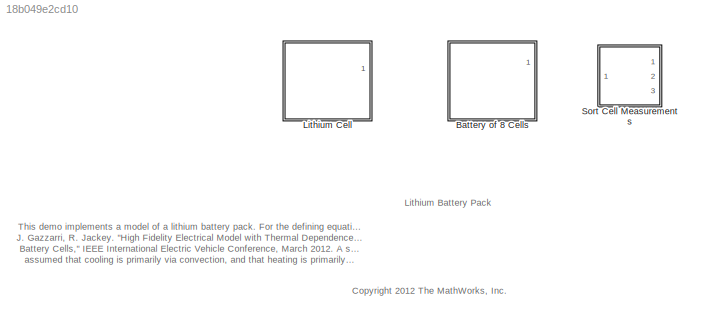
MODEL slx_18b049e2cd10
KIND library
CONFIG AbsTol = auto
CONFIG EnableMultiTasking = on
CONFIG FixedStep = auto
CONFIG MaxStep = auto
CONFIG MinStep = auto
CONFIG RelTol = 1e-3
CONFIG SampleTimeConstraint = Unconstrained
CONFIG Solver = ode45
CONFIG SolverName = ode45
CONFIG StartTime = 0.0
CONFIG StopTime = 10.0
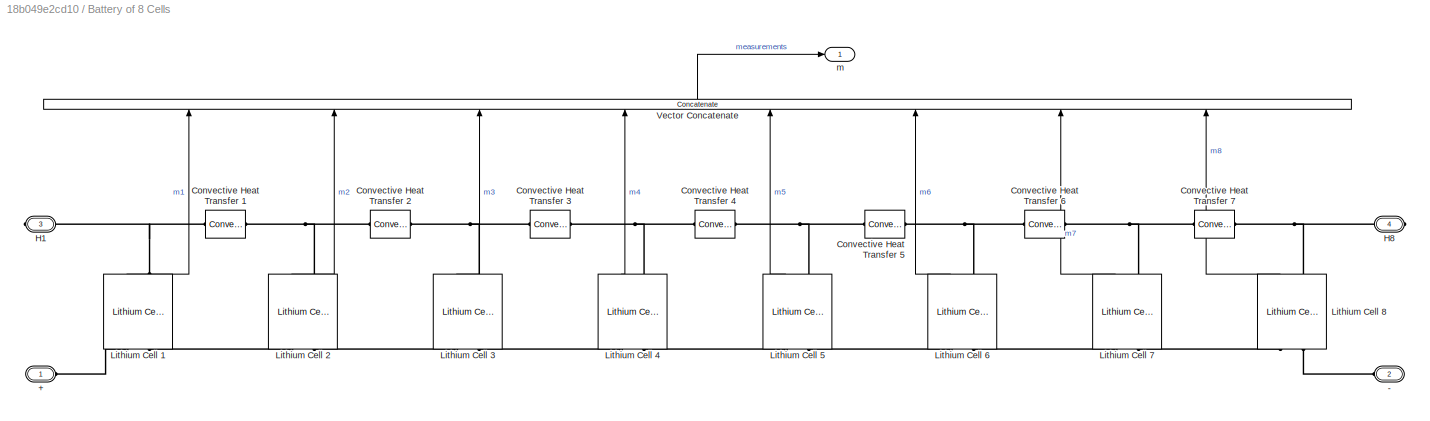
BLOCK [SubSystem] Battery of 8 Cells
  AttributesFormatString = %<ThisStackParams>
  Ports = [0, 1, 0, 0, 0, 2, 2]
  RequestExecContextInheritance = off
  Variant = off
BLOCK [PMIOPort] Battery of 8 Cells/+
  Port = 1
  Side = Left
BLOCK [PMIOPort] Battery of 8 Cells/-
  Port = 2
  Side = Left
BLOCK [Reference] Battery of 8 Cells/Convective Heat Transfer 1  REF=fl_lib/Thermal/Thermal Elements/Convective Heat
Transfer
  Ports = [0, 0, 0, 0, 0, 1, 1]
  SourceBlock = fl_lib/Thermal/Thermal Elements/Convective Heat\nTransfer
  SourceProductBaseCode = SS
  SourceProductName = Simscape
  SourceType = Convective Heat\nTransfer
BLOCK [Reference] Battery of 8 Cells/Convective Heat Transfer 2  REF=fl_lib/Thermal/Thermal Elements/Convective Heat
Transfer
  Ports = [0, 0, 0, 0, 0, 1, 1]
  SourceBlock = fl_lib/Thermal/Thermal Elements/Convective Heat\nTransfer
  SourceProductBaseCode = SS
  SourceProductName = Simscape
  SourceType = Convective Heat\nTransfer
BLOCK [Reference] Battery of 8 Cells/Convective Heat Transfer 3  REF=fl_lib/Thermal/Thermal Elements/Convective Heat
Transfer
  Ports = [0, 0, 0, 0, 0, 1, 1]
  SourceBlock = fl_lib/Thermal/Thermal Elements/Convective Heat\nTransfer
  SourceProductBaseCode = SS
  SourceProductName = Simscape
  SourceType = Convective Heat\nTransfer
BLOCK [Reference] Battery of 8 Cells/Convective Heat Transfer 4  REF=fl_lib/Thermal/Thermal Elements/Convective Heat
Transfer
  Ports = [0, 0, 0, 0, 0, 1, 1]
  SourceBlock = fl_lib/Thermal/Thermal Elements/Convective Heat\nTransfer
  SourceProductBaseCode = SS
  SourceProductName = Simscape
  SourceType = Convective Heat\nTransfer
BLOCK [Reference] Battery of 8 Cells/Convective Heat Transfer 5  REF=fl_lib/Thermal/Thermal Elements/Convective Heat
Transfer
  Ports = [0, 0, 0, 0, 0, 1, 1]
  SourceBlock = fl_lib/Thermal/Thermal Elements/Convective Heat\nTransfer
  SourceProductBaseCode = SS
  SourceProductName = Simscape
  SourceType = Convective Heat\nTransfer
BLOCK [Reference] Battery of 8 Cells/Convective Heat Transfer 6  REF=fl_lib/Thermal/Thermal Elements/Convective Heat
Transfer
  Ports = [0, 0, 0, 0, 0, 1, 1]
  SourceBlock = fl_lib/Thermal/Thermal Elements/Convective Heat\nTransfer
  SourceProductBaseCode = SS
  SourceProductName = Simscape
  SourceType = Convective Heat\nTransfer
BLOCK [Reference] Battery of 8 Cells/Convective Heat Transfer 7  REF=fl_lib/Thermal/Thermal Elements/Convective Heat
Transfer
  Ports = [0, 0, 0, 0, 0, 1, 1]
  SourceBlock = fl_lib/Thermal/Thermal Elements/Convective Heat\nTransfer
  SourceProductBaseCode = SS
  SourceProductName = Simscape
  SourceType = Convective Heat\nTransfer
BLOCK [PMIOPort] Battery of 8 Cells/H1
  Port = 3
  Side = Right
BLOCK [PMIOPort] Battery of 8 Cells/H8
  Port = 4
  Side = Right
BLOCK [Reference] Battery of 8 Cells/Lithium Cell 1  REF=LiBatteryBlocks/Lithium Cell
  AttributesFormatString = %<Battery>
  Ports = [0, 1, 0, 0, 0, 2, 1]
  SourceBlock = LiBatteryBlocks/Lithium Cell
  SourceType = Battery Cell
BLOCK [Reference] Battery of 8 Cells/Lithium Cell 2  REF=LiBatteryBlocks/Lithium Cell
  AttributesFormatString = %<Battery>
  Ports = [0, 1, 0, 0, 0, 2, 1]
  SourceBlock = LiBatteryBlocks/Lithium Cell
  SourceType = Battery Cell
BLOCK [Reference] Battery of 8 Cells/Lithium Cell 3  REF=LiBatteryBlocks/Lithium Cell
  AttributesFormatString = %<Battery>
  Ports = [0, 1, 0, 0, 0, 2, 1]
  SourceBlock = LiBatteryBlocks/Lithium Cell
  SourceType = Battery Cell
BLOCK [Reference] Battery of 8 Cells/Lithium Cell 4  REF=LiBatteryBlocks/Lithium Cell
  AttributesFormatString = %<Battery>
  Ports = [0, 1, 0, 0, 0, 2, 1]
  SourceBlock = LiBatteryBlocks/Lithium Cell
  SourceType = Battery Cell
BLOCK [Reference] Battery of 8 Cells/Lithium Cell 5  REF=LiBatteryBlocks/Lithium Cell
  AttributesFormatString = %<Battery>
  Ports = [0, 1, 0, 0, 0, 2, 1]
  SourceBlock = LiBatteryBlocks/Lithium Cell
  SourceType = Battery Cell
BLOCK [Reference] Battery of 8 Cells/Lithium Cell 6  REF=LiBatteryBlocks/Lithium Cell
  AttributesFormatString = %<Battery>
  Ports = [0, 1, 0, 0, 0, 2, 1]
  SourceBlock = LiBatteryBlocks/Lithium Cell
  SourceType = Battery Cell
BLOCK [Reference] Battery of 8 Cells/Lithium Cell 7  REF=LiBatteryBlocks/Lithium Cell
  AttributesFormatString = %<Battery>
  Ports = [0, 1, 0, 0, 0, 2, 1]
  SourceBlock = LiBatteryBlocks/Lithium Cell
  SourceType = Battery Cell
BLOCK [Reference] Battery of 8 Cells/Lithium Cell 8  REF=LiBatteryBlocks/Lithium Cell
  AttributesFormatString = %<Battery>
  Ports = [0, 1, 0, 0, 0, 2, 1]
  SourceBlock = LiBatteryBlocks/Lithium Cell
  SourceType = Battery Cell
BLOCK [Concatenate] Battery of 8 Cells/Vector Concatenate
  NumInputs = 8
  Ports = [8, 1]
BLOCK [Outport] Battery of 8 Cells/m
  IconDisplay = Port number
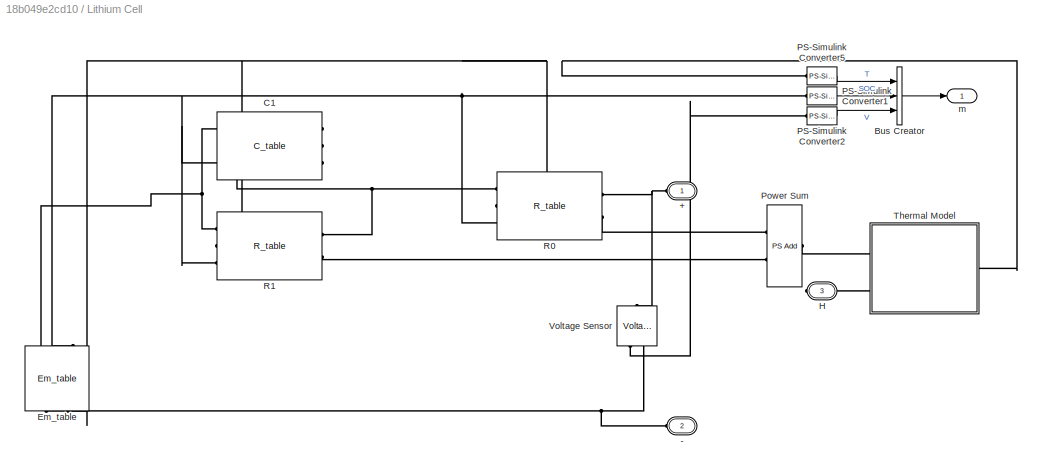
BLOCK [SubSystem] Lithium Cell
  AttributesFormatString = %<Battery>
  Ports = [0, 1, 0, 0, 0, 2, 1]
  RequestExecContextInheritance = off
  Variant = off
BLOCK [PMIOPort] Lithium Cell/+
  Port = 1
  Side = Left
  Tag = PMCPort
BLOCK [PMIOPort] Lithium Cell/-
  Port = 2
  Side = Left
  Tag = PMCPort
BLOCK [BusCreator] Lithium Cell/Bus Creator
  DisplayOption = bar
  InheritFromInputs = on
  Inputs = 3
  Ports = [3, 1]
BLOCK [Reference] Lithium Cell/C1  REF=LiBatteryElements_lib/C_table
  Ports = [0, 0, 0, 0, 0, 3, 1]
  SourceBlock = LiBatteryElements_lib/C_table
  SourceType = C_table
BLOCK [Reference] Lithium Cell/Em_table  REF=LiBatteryElements_lib/Em_table
  Ports = [0, 0, 0, 0, 0, 3, 2]
  SourceBlock = LiBatteryElements_lib/Em_table
  SourceType = Em_table
BLOCK [PMIOPort] Lithium Cell/H
  Port = 3
  Side = Right
  Tag = PMCPort
BLOCK [Reference] Lithium Cell/PS-Simulink Converter1  REF=nesl_utility/PS-Simulink
Converter
  Ports = [0, 1, 0, 0, 0, 1]
  SourceBlock = nesl_utility/PS-Simulink\nConverter
  SourceProductBaseCode = SS
  SourceProductName = Simscape
  SourceType = PS-Simulink\nConverter
BLOCK [Reference] Lithium Cell/PS-Simulink Converter2  REF=nesl_utility/PS-Simulink
Converter
  Ports = [0, 1, 0, 0, 0, 1]
  SourceBlock = nesl_utility/PS-Simulink\nConverter
  SourceProductBaseCode = SS
  SourceProductName = Simscape
  SourceType = PS-Simulink\nConverter
BLOCK [Reference] Lithium Cell/PS-Simulink Converter5  REF=nesl_utility/PS-Simulink
Converter
  Ports = [0, 1, 0, 0, 0, 1]
  SourceBlock = nesl_utility/PS-Simulink\nConverter
  SourceProductBaseCode = SS
  SourceProductName = Simscape
  SourceType = PS-Simulink\nConverter
BLOCK [Reference] Lithium Cell/Power Sum  REF=fl_lib/Physical Signals/Functions/PS Add
  Ports = [0, 0, 0, 0, 0, 2, 1]
  SourceBlock = fl_lib/Physical Signals/Functions/PS Add
  SourceProductBaseCode = SS
  SourceProductName = Simscape
  SourceType = PS Add
BLOCK [Reference] Lithium Cell/R0  REF=LiBatteryElements_lib/R_table
  Ports = [0, 0, 0, 0, 0, 3, 2]
  SourceBlock = LiBatteryElements_lib/R_table
  SourceType = R_table
BLOCK [Reference] Lithium Cell/R1  REF=LiBatteryElements_lib/R_table
  Ports = [0, 0, 0, 0, 0, 3, 2]
  SourceBlock = LiBatteryElements_lib/R_table
  SourceType = R_table
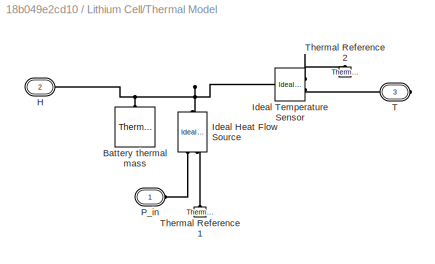
BLOCK [SubSystem] Lithium Cell/Thermal Model
  Ports = [0, 0, 0, 0, 0, 2, 1]
  RequestExecContextInheritance = off
  Variant = off
BLOCK [Reference] Lithium Cell/Thermal Model/Battery thermal mass  REF=fl_lib/Thermal/Thermal Elements/Thermal Mass
  Ports = [0, 0, 0, 0, 0, 1]
  SourceBlock = fl_lib/Thermal/Thermal Elements/Thermal Mass
  SourceProductBaseCode = SS
  SourceProductName = Simscape
  SourceType = Thermal Mass
BLOCK [PMIOPort] Lithium Cell/Thermal Model/H
  Port = 2
  Side = Left
  Tag = PMCPort
BLOCK [Reference] Lithium Cell/Thermal Model/Ideal Heat Flow Source  REF=fl_lib/Thermal/Thermal Sources/Ideal Heat Flow
Source
  Ports = [0, 0, 0, 0, 0, 1, 2]
  SourceBlock = fl_lib/Thermal/Thermal Sources/Ideal Heat Flow\nSource
  SourceProductBaseCode = SS
  SourceProductName = Simscape
  SourceType = Ideal Heat Flow\nSource
BLOCK [Reference] Lithium Cell/Thermal Model/Ideal Temperature Sensor  REF=fl_lib/Thermal/Thermal Sensors/Ideal Temperature
Sensor
  Ports = [0, 0, 0, 0, 0, 1, 2]
  SourceBlock = fl_lib/Thermal/Thermal Sensors/Ideal Temperature\nSensor
  SourceProductBaseCode = SS
  SourceProductName = Simscape
  SourceType = Ideal Temperature\nSensor
BLOCK [PMIOPort] Lithium Cell/Thermal Model/P_in
  Port = 1
  Side = Left
  Tag = PMCPort
BLOCK [PMIOPort] Lithium Cell/Thermal Model/T
  Port = 3
  Side = Right
  Tag = PMCPort
BLOCK [Reference] Lithium Cell/Thermal Model/Thermal Reference1  REF=fl_lib/Thermal/Thermal Elements/Thermal Reference
  Ports = [0, 0, 0, 0, 0, 1]
  SourceBlock = fl_lib/Thermal/Thermal Elements/Thermal Reference
  SourceProductBaseCode = SS
  SourceProductName = Simscape
  SourceType = Thermal Reference
BLOCK [Reference] Lithium Cell/Thermal Model/Thermal Reference2  REF=fl_lib/Thermal/Thermal Elements/Thermal Reference
  Ports = [0, 0, 0, 0, 0, 1]
  SourceBlock = fl_lib/Thermal/Thermal Elements/Thermal Reference
  SourceProductBaseCode = SS
  SourceProductName = Simscape
  SourceType = Thermal Reference
BLOCK [Reference] Lithium Cell/Voltage Sensor  REF=fl_lib/Electrical/Electrical Sensors/Voltage Sensor
  Ports = [0, 0, 0, 0, 0, 1, 2]
  SourceBlock = fl_lib/Electrical/Electrical Sensors/Voltage Sensor
  SourceProductBaseCode = SS
  SourceProductName = Simscape
  SourceType = Voltage Sensor
BLOCK [Outport] Lithium Cell/m
  IconDisplay = Port number
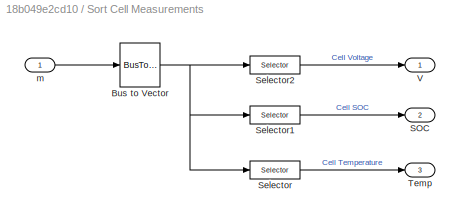
BLOCK [SubSystem] Sort Cell Measurements
  Ports = [1, 3]
  RequestExecContextInheritance = off
  Variant = off
BLOCK [BusToVector] Sort Cell Measurements/Bus to Vector
BLOCK [Outport] Sort Cell Measurements/SOC
  IconDisplay = Port number
  Port = 2
BLOCK [Selector] Sort Cell Measurements/Selector
  IndexOptions = Index vector (dialog)
  Indices = 1:3:numCells*3
  InputPortWidth = numCells * 3
  OutputSizes = 1
  Ports = [1, 1]
BLOCK [Selector] Sort Cell Measurements/Selector1
  IndexOptions = Index vector (dialog)
  Indices = 2:3:numCells*3
  InputPortWidth = numCells * 3
  OutputSizes = 1
  Ports = [1, 1]
BLOCK [Selector] Sort Cell Measurements/Selector2
  IndexOptions = Index vector (dialog)
  Indices = 3:3:numCells*3
  InputPortWidth = numCells * 3
  OutputSizes = 1
  Ports = [1, 1]
BLOCK [Outport] Sort Cell Measurements/Temp
  IconDisplay = Port number
  Port = 3
BLOCK [Outport] Sort Cell Measurements/V
  IconDisplay = Port number
BLOCK [Inport] Sort Cell Measurements/m
  IconDisplay = Port number
ANNOTATION (root): <copyright redacted>
ANNOTATION (root): Lithium Battery Pack
ANNOTATION (root): This demo implements a model of a lithium battery pack. For the defining equations of each cell and their validation, see T. Huria, M. Ceraolo, J. Gazzarri, R. Jackey. "High Fidelity Electrical Model with Thermal Dependence for Characterization and Simulation of High Power Lithium Battery Cells," IEEE International Electric Vehicle Conference, March 2012. A simple thermal model is used to model ba...<+130ch>
LINE Battery of 8 Cells/Lithium Cell 1:1 -> Battery of 8 Cells/Vector Concatenate:1
LINE Battery of 8 Cells/Lithium Cell 2:1 -> Battery of 8 Cells/Vector Concatenate:2
LINE Battery of 8 Cells/Lithium Cell 3:1 -> Battery of 8 Cells/Vector Concatenate:3
LINE Battery of 8 Cells/Lithium Cell 4:1 -> Battery of 8 Cells/Vector Concatenate:4
LINE Battery of 8 Cells/Lithium Cell 5:1 -> Battery of 8 Cells/Vector Concatenate:5
LINE Battery of 8 Cells/Lithium Cell 6:1 -> Battery of 8 Cells/Vector Concatenate:6
LINE Battery of 8 Cells/Lithium Cell 7:1 -> Battery of 8 Cells/Vector Concatenate:7
LINE Battery of 8 Cells/Lithium Cell 8:1 -> Battery of 8 Cells/Vector Concatenate:8
LINE Battery of 8 Cells/Vector Concatenate:1 -> Battery of 8 Cells/m:1
LINE Lithium Cell/Bus Creator:1 -> Lithium Cell/m:1
LINE Lithium Cell/PS-Simulink Converter1:1 -> Lithium Cell/Bus Creator:2
LINE Lithium Cell/PS-Simulink Converter2:1 -> Lithium Cell/Bus Creator:3
LINE Lithium Cell/PS-Simulink Converter5:1 -> Lithium Cell/Bus Creator:1
NET Sort Cell Measurements/Bus to Vector:1 -> Sort Cell Measurements/Selector1:1, Sort Cell Measurements/Selector2:1, Sort Cell Measurements/Selector:1
LINE Sort Cell Measurements/Selector1:1 -> Sort Cell Measurements/SOC:1
LINE Sort Cell Measurements/Selector2:1 -> Sort Cell Measurements/V:1
LINE Sort Cell Measurements/Selector:1 -> Sort Cell Measurements/Temp:1
LINE Sort Cell Measurements/m:1 -> Sort Cell Measurements/Bus to Vector:1
PLINE Battery of 8 Cells/+:RConn1 -- Battery of 8 Cells/Lithium Cell 1:LConn1
PLINE Battery of 8 Cells/-:RConn1 -- Battery of 8 Cells/Lithium Cell 8:LConn2
PNET net1: Battery of 8 Cells/Convective Heat Transfer 1:LConn1 -- Battery of 8 Cells/H1:RConn1 -- Battery of 8 Cells/Lithium Cell 1:RConn1
PNET net2: Battery of 8 Cells/Convective Heat Transfer 1:RConn1 -- Battery of 8 Cells/Convective Heat Transfer 2:LConn1 -- Battery of 8 Cells/Lithium Cell 2:RConn1
PNET net3: Battery of 8 Cells/Convective Heat Transfer 2:RConn1 -- Battery of 8 Cells/Convective Heat Transfer 3:LConn1 -- Battery of 8 Cells/Lithium Cell 3:RConn1
PNET net4: Battery of 8 Cells/Convective Heat Transfer 3:RConn1 -- Battery of 8 Cells/Convective Heat Transfer 4:LConn1 -- Battery of 8 Cells/Lithium Cell 4:RConn1
PNET net5: Battery of 8 Cells/Convective Heat Transfer 4:RConn1 -- Battery of 8 Cells/Convective Heat Transfer 5:LConn1 -- Battery of 8 Cells/Lithium Cell 5:RConn1
PNET net6: Battery of 8 Cells/Convective Heat Transfer 5:RConn1 -- Battery of 8 Cells/Convective Heat Transfer 6:LConn1 -- Battery of 8 Cells/Lithium Cell 6:RConn1
PNET net7: Battery of 8 Cells/Convective Heat Transfer 6:RConn1 -- Battery of 8 Cells/Convective Heat Transfer 7:LConn1 -- Battery of 8 Cells/Lithium Cell 7:RConn1
PNET net8: Battery of 8 Cells/Convective Heat Transfer 7:RConn1 -- Battery of 8 Cells/H8:RConn1 -- Battery of 8 Cells/Lithium Cell 8:RConn1
PLINE Battery of 8 Cells/Lithium Cell 1:LConn2 -- Battery of 8 Cells/Lithium Cell 2:LConn1
PLINE Battery of 8 Cells/Lithium Cell 2:LConn2 -- Battery of 8 Cells/Lithium Cell 3:LConn1
PLINE Battery of 8 Cells/Lithium Cell 3:LConn2 -- Battery of 8 Cells/Lithium Cell 4:LConn1
PLINE Battery of 8 Cells/Lithium Cell 4:LConn2 -- Battery of 8 Cells/Lithium Cell 5:LConn1
PLINE Battery of 8 Cells/Lithium Cell 5:LConn2 -- Battery of 8 Cells/Lithium Cell 6:LConn1
PLINE Battery of 8 Cells/Lithium Cell 6:LConn2 -- Battery of 8 Cells/Lithium Cell 7:LConn1
PLINE Battery of 8 Cells/Lithium Cell 7:LConn2 -- Battery of 8 Cells/Lithium Cell 8:LConn1
PNET net9: Lithium Cell/+:RConn1 -- Lithium Cell/R0:RConn1 -- Lithium Cell/Voltage Sensor:LConn1
PNET net10: Lithium Cell/-:RConn1 -- Lithium Cell/Em_table:RConn1 -- Lithium Cell/Voltage Sensor:RConn2
PNET net11: Lithium Cell/C1:LConn1 -- Lithium Cell/Em_table:LConn1 -- Lithium Cell/R1:LConn1
PNET net12: Lithium Cell/C1:LConn2 -- Lithium Cell/Em_table:RConn2 -- Lithium Cell/PS-Simulink Converter5:LConn1 -- Lithium Cell/R0:LConn2 -- Lithium Cell/R1:LConn2 -- Lithium Cell/Thermal Model:RConn1
PNET net13: Lithium Cell/C1:LConn3 -- Lithium Cell/Em_table:LConn3 -- Lithium Cell/PS-Simulink Converter1:LConn1 -- Lithium Cell/R0:LConn3 -- Lithium Cell/R1:LConn3
PNET net14: Lithium Cell/C1:RConn1 -- Lithium Cell/R0:LConn1 -- Lithium Cell/R1:RConn1
PLINE Lithium Cell/H:RConn1 -- Lithium Cell/Thermal Model:LConn2
PLINE Lithium Cell/PS-Simulink Converter2:LConn1 -- Lithium Cell/Voltage Sensor:RConn1
PLINE Lithium Cell/Power Sum:LConn1 -- Lithium Cell/R0:RConn2
PLINE Lithium Cell/Power Sum:LConn2 -- Lithium Cell/R1:RConn2
PLINE Lithium Cell/Power Sum:RConn1 -- Lithium Cell/Thermal Model:LConn1
PNET net15: Lithium Cell/Thermal Model/Battery thermal mass:LConn1 -- Lithium Cell/Thermal Model/H:RConn1 -- Lithium Cell/Thermal Model/Ideal Heat Flow Source:LConn1 -- Lithium Cell/Thermal Model/Ideal Temperature Sensor:LConn1
PLINE Lithium Cell/Thermal Model/Ideal Heat Flow Source:RConn1 -- Lithium Cell/Thermal Model/P_in:RConn1
PLINE Lithium Cell/Thermal Model/Ideal Heat Flow Source:RConn2 -- Lithium Cell/Thermal Model/Thermal Reference1:LConn1
PLINE Lithium Cell/Thermal Model/Ideal Temperature Sensor:RConn1 -- Lithium Cell/Thermal Model/Thermal Reference2:LConn1
PLINE Lithium Cell/Thermal Model/Ideal Temperature Sensor:RConn2 -- Lithium Cell/Thermal Model/T:RConn1
note: NET lines group one-source signal fan-out (src -> all destinations, sorted); 1:1 wires keep LINE; PNET lines group multi-terminal physical nets as a canonical sorted terminal list (undirected conserving connections); 2-terminal nets keep the pairwise PLINE form
